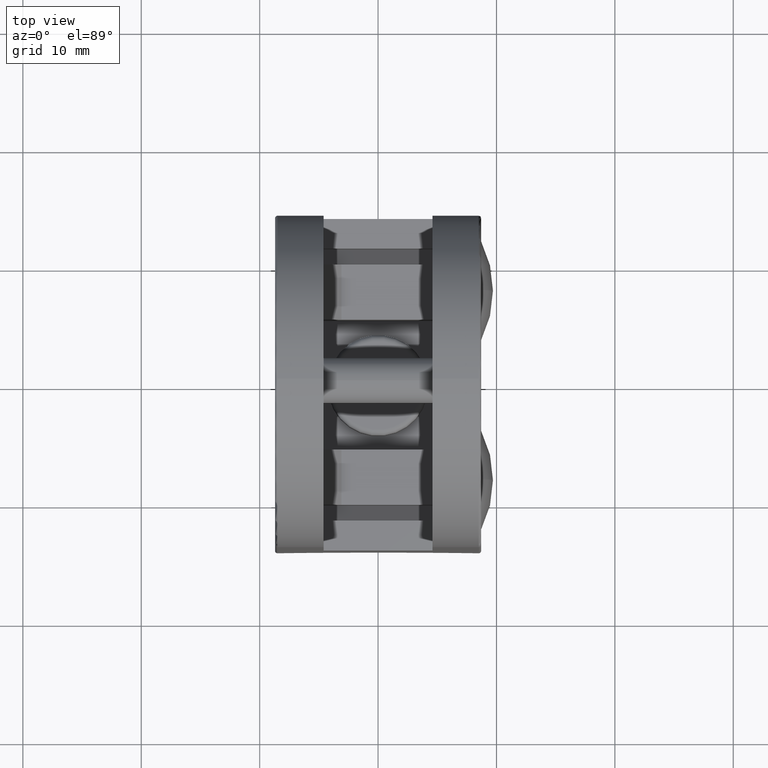
[diagram: clean part render]
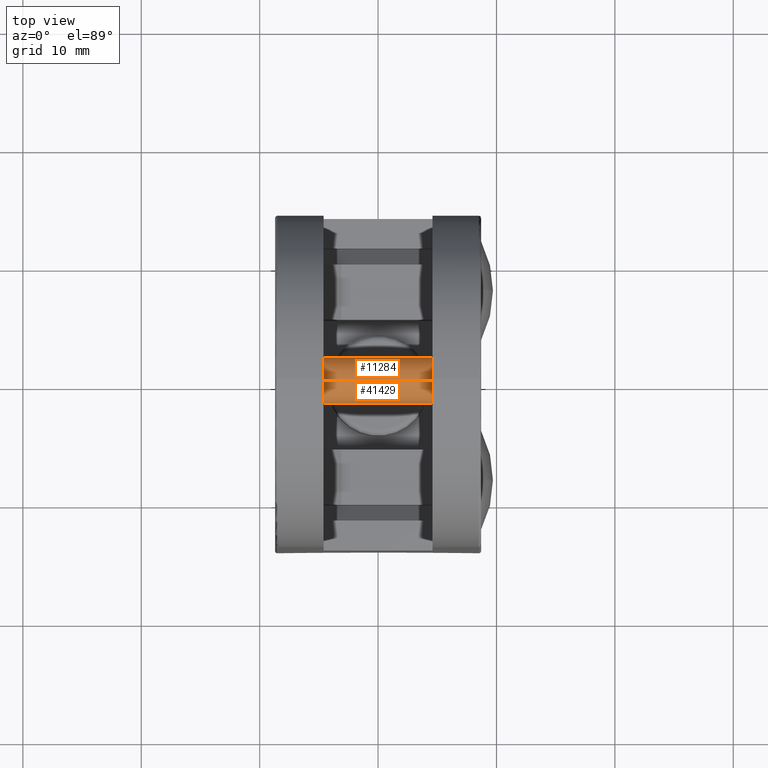
[diagram: same view with one multi-face feature highlighted, each face labeled with its STEP entity id]
A machine part, top view. The highlighted faces form ONE feature: a constant-radius fillet chain: 2 tangent blend faces with common blend radius 1.925 mm. The faces share edges in the B-rep.
Their STEP definitions:
[1] entity #41429 (Cylinder):
#573 = EDGE_LOOP ( 'NONE', ( #35670, #20524, #41121, #37794 ) ) ;
#1647 = DIRECTION ( 'NONE',  ( 0.0000000000000000000, 0.0000000000000000000, 1.000000000000000000 ) ) ;
#2535 = DIRECTION ( 'NONE',  ( 1.000000000000000000, 0.0000000000000000000, 0.0000000000000000000 ) ) ;
#2874 = AXIS2_PLACEMENT_3D ( 'NONE', #46228, #1647, #5767 ) ;
#3320 = CIRCLE ( 'NONE', #23491, 1.925000000000000000 ) ;
#5767 = DIRECTION ( 'NONE',  ( 1.000000000000000000, 0.0000000000000000000, 0.0000000000000000000 ) ) ;
#9947 = VECTOR ( 'NONE', #19590, 1000.000000000000000 ) ;
#10345 = CARTESIAN_POINT ( 'NONE',  ( 1.925000000000000000, 2.357445088358654300E-016, 6.500000000000000000 ) ) ;
#12015 = LINE ( 'NONE', #10345, #9947 ) ;
#12895 = DIRECTION ( 'NONE',  ( -0.0000000000000000000, -0.0000000000000000000, -1.000000000000000000 ) ) ;
#15983 = EDGE_CURVE ( 'NONE', #44498, #17892, #52392, .T. ) ;
#17892 = VERTEX_POINT ( 'NONE', #44091 ) ;
#18836 = VERTEX_POINT ( 'NONE', #20647 ) ;
#18967 = DIRECTION ( 'NONE',  ( -0.0000000000000000000, -0.0000000000000000000, -1.000000000000000000 ) ) ;
#19590 = DIRECTION ( 'NONE',  ( -0.0000000000000000000, -0.0000000000000000000, -1.000000000000000000 ) ) ;
#19642 = VERTEX_POINT ( 'NONE', #25392 ) ;
#20524 = ORIENTED_EDGE ( 'NONE', *, *, #15983, .F. ) ;
#20647 = CARTESIAN_POINT ( 'NONE',  ( 1.925000000000000000, 2.357445088358654300E-016, -6.500000000000000000 ) ) ;
#20846 = DIRECTION ( 'NONE',  ( 0.0000000000000000000, 0.0000000000000000000, 1.000000000000000000 ) ) ;
#23491 = AXIS2_PLACEMENT_3D ( 'NONE', #42742, #20846, #2535 ) ;
#25392 = CARTESIAN_POINT ( 'NONE',  ( -1.925000000000000000, 0.0000000000000000000, -6.500000000000000000 ) ) ;
#25650 = VECTOR ( 'NONE', #18967, 1000.000000000000000 ) ;
#30399 = CARTESIAN_POINT ( 'NONE',  ( -1.925000000000000000, 0.0000000000000000000, 6.500000000000000000 ) ) ;
#30864 = CARTESIAN_POINT ( 'NONE',  ( 0.0000000000000000000, 0.0000000000000000000, 6.500000000000000000 ) ) ;
#31355 = LINE ( 'NONE', #32047, #25650 ) ;
#32047 = CARTESIAN_POINT ( 'NONE',  ( -1.925000000000000000, 0.0000000000000000000, 6.500000000000000000 ) ) ;
#35670 = ORIENTED_EDGE ( 'NONE', *, *, #48220, .F. ) ;
#37794 = ORIENTED_EDGE ( 'NONE', *, *, #40786, .T. ) ;
#38600 = AXIS2_PLACEMENT_3D ( 'NONE', #30864, #12895, #53605 ) ;
#40786 = EDGE_CURVE ( 'NONE', #19642, #18836, #3320, .T. ) ;
#41121 = ORIENTED_EDGE ( 'NONE', *, *, #44176, .T. ) ;
#41429 = ADVANCED_FACE ( 'NONE', ( #56289 ), #54900, .T. ) ;
#42742 = CARTESIAN_POINT ( 'NONE',  ( 0.0000000000000000000, 0.0000000000000000000, -6.500000000000000000 ) ) ;
#44091 = CARTESIAN_POINT ( 'NONE',  ( 1.925000000000000000, 2.357445088358654300E-016, 6.500000000000000000 ) ) ;
#44176 = EDGE_CURVE ( 'NONE', #44498, #19642, #31355, .T. ) ;
#44498 = VERTEX_POINT ( 'NONE', #30399 ) ;
#46228 = CARTESIAN_POINT ( 'NONE',  ( 0.0000000000000000000, 0.0000000000000000000, 6.500000000000000000 ) ) ;
#48220 = EDGE_CURVE ( 'NONE', #17892, #18836, #12015, .T. ) ;
#52392 = CIRCLE ( 'NONE', #2874, 1.925000000000000000 ) ;
#53605 = DIRECTION ( 'NONE',  ( -1.000000000000000000, 0.0000000000000000000, 0.0000000000000000000 ) ) ;
#54900 = CYLINDRICAL_SURFACE ( 'NONE', #38600, 1.925000000000000000 ) ;
#56289 = FACE_OUTER_BOUND ( 'NONE', #573, .T. ) ;
[2] entity #11284 (Cylinder):
#9947 = VECTOR ( 'NONE', #19590, 1000.000000000000000 ) ;
#10345 = CARTESIAN_POINT ( 'NONE',  ( 1.925000000000000000, 2.357445088358654300E-016, 6.500000000000000000 ) ) ;
#10938 = EDGE_CURVE ( 'NONE', #17892, #44498, #31206, .T. ) ;
#11284 = ADVANCED_FACE ( 'NONE', ( #56598 ), #20488, .T. ) ;
#12015 = LINE ( 'NONE', #10345, #9947 ) ;
#14606 = CARTESIAN_POINT ( 'NONE',  ( 0.0000000000000000000, 0.0000000000000000000, 6.500000000000000000 ) ) ;
#16675 = AXIS2_PLACEMENT_3D ( 'NONE', #14606, #46187, #50967 ) ;
#16981 = ORIENTED_EDGE ( 'NONE', *, *, #48220, .T. ) ;
#17892 = VERTEX_POINT ( 'NONE', #44091 ) ;
#18681 = CARTESIAN_POINT ( 'NONE',  ( 0.0000000000000000000, 0.0000000000000000000, 6.500000000000000000 ) ) ;
#18836 = VERTEX_POINT ( 'NONE', #20647 ) ;
#18967 = DIRECTION ( 'NONE',  ( -0.0000000000000000000, -0.0000000000000000000, -1.000000000000000000 ) ) ;
#19024 = CARTESIAN_POINT ( 'NONE',  ( 0.0000000000000000000, 0.0000000000000000000, -6.500000000000000000 ) ) ;
#19590 = DIRECTION ( 'NONE',  ( -0.0000000000000000000, -0.0000000000000000000, -1.000000000000000000 ) ) ;
#19642 = VERTEX_POINT ( 'NONE', #25392 ) ;
#20488 = CYLINDRICAL_SURFACE ( 'NONE', #32278, 1.925000000000000000 ) ;
#20647 = CARTESIAN_POINT ( 'NONE',  ( 1.925000000000000000, 2.357445088358654300E-016, -6.500000000000000000 ) ) ;
#20654 = AXIS2_PLACEMENT_3D ( 'NONE', #19024, #42874, #34017 ) ;
#25392 = CARTESIAN_POINT ( 'NONE',  ( -1.925000000000000000, 0.0000000000000000000, -6.500000000000000000 ) ) ;
#25650 = VECTOR ( 'NONE', #18967, 1000.000000000000000 ) ;
#30399 = CARTESIAN_POINT ( 'NONE',  ( -1.925000000000000000, 0.0000000000000000000, 6.500000000000000000 ) ) ;
#31206 = CIRCLE ( 'NONE', #16675, 1.925000000000000000 ) ;
#31355 = LINE ( 'NONE', #32047, #25650 ) ;
#31738 = EDGE_CURVE ( 'NONE', #18836, #19642, #42483, .T. ) ;
#32047 = CARTESIAN_POINT ( 'NONE',  ( -1.925000000000000000, 0.0000000000000000000, 6.500000000000000000 ) ) ;
#32278 = AXIS2_PLACEMENT_3D ( 'NONE', #18681, #41550, #50319 ) ;
#34017 = DIRECTION ( 'NONE',  ( 1.000000000000000000, 0.0000000000000000000, 0.0000000000000000000 ) ) ;
#36394 = ORIENTED_EDGE ( 'NONE', *, *, #10938, .F. ) ;
#38520 = EDGE_LOOP ( 'NONE', ( #36394, #16981, #58378, #54787 ) ) ;
#41550 = DIRECTION ( 'NONE',  ( -0.0000000000000000000, -0.0000000000000000000, -1.000000000000000000 ) ) ;
#42483 = CIRCLE ( 'NONE', #20654, 1.925000000000000000 ) ;
#42874 = DIRECTION ( 'NONE',  ( 0.0000000000000000000, 0.0000000000000000000, 1.000000000000000000 ) ) ;
#44091 = CARTESIAN_POINT ( 'NONE',  ( 1.925000000000000000, 2.357445088358654300E-016, 6.500000000000000000 ) ) ;
#44176 = EDGE_CURVE ( 'NONE', #44498, #19642, #31355, .T. ) ;
#44498 = VERTEX_POINT ( 'NONE', #30399 ) ;
#46187 = DIRECTION ( 'NONE',  ( 0.0000000000000000000, 0.0000000000000000000, 1.000000000000000000 ) ) ;
#48220 = EDGE_CURVE ( 'NONE', #17892, #18836, #12015, .T. ) ;
#50319 = DIRECTION ( 'NONE',  ( -1.000000000000000000, 0.0000000000000000000, 0.0000000000000000000 ) ) ;
#50967 = DIRECTION ( 'NONE',  ( 1.000000000000000000, 0.0000000000000000000, 0.0000000000000000000 ) ) ;
#54787 = ORIENTED_EDGE ( 'NONE', *, *, #44176, .F. ) ;
#56598 = FACE_OUTER_BOUND ( 'NONE', #38520, .T. ) ;
#58378 = ORIENTED_EDGE ( 'NONE', *, *, #31738, .T. ) ;